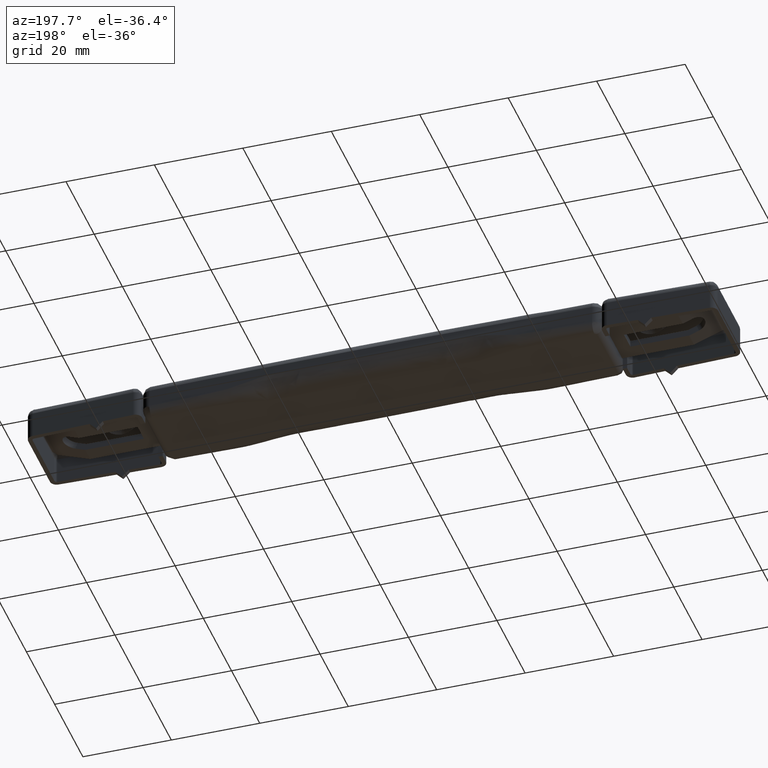
[diagram: clean part render]
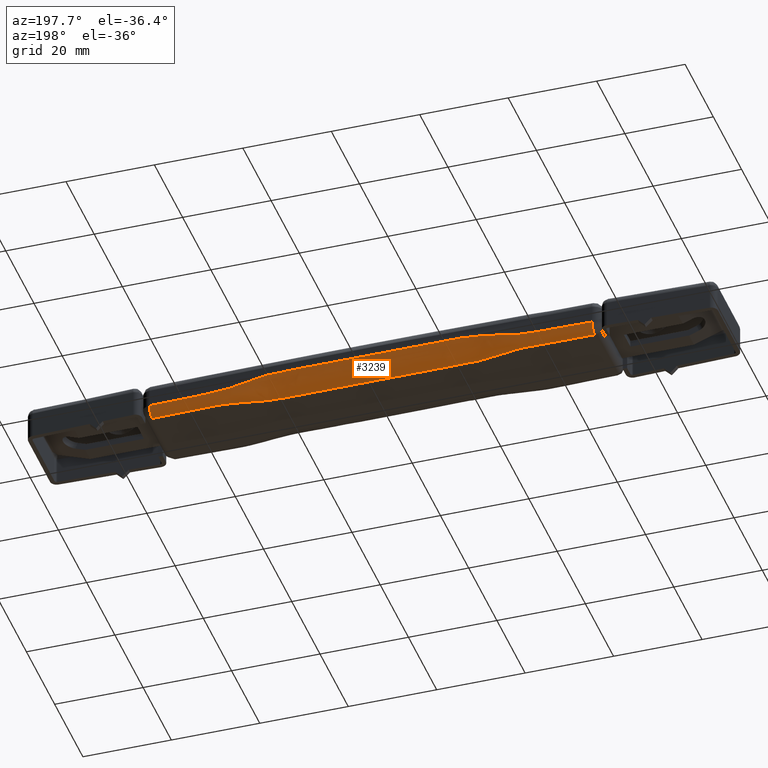
[diagram: same view with one face highlighted and labeled with its STEP entity id]
A machine part, auxiliary view. The second image highlights one B-rep face of the part: STEP entity #3239.
In plain terms, the highlighted face is a freeform B-spline surface patch.
Its self-contained STEP definition (entity closure, byte-faithful):
#2875=CARTESIAN_POINT('',(-50.030370283830990,8.867871820603176,0.585786440266086));
#2876=VERTEX_POINT('',#2875);
#2877=CARTESIAN_POINT('',(-50.043115752828498,9.453519588441759,1.999999999796830));
#2878=VERTEX_POINT('',#2877);
#2879=CARTESIAN_POINT('',(-50.030370283830983,8.867871820603174,0.585786440266087));
#2880=CARTESIAN_POINT('',(-50.043115752687534,9.453519581947637,1.171572877440153));
#2881=CARTESIAN_POINT('',(-50.043115752686099,9.453519581863509,2.0));
#2889=(BOUNDED_CURVE()B_SPLINE_CURVE(2,(#2879,#2880,#2881),.UNSPECIFIED.,.F.,.U.)B_SPLINE_CURVE_WITH_KNOTS((3,3),(0.500000001126408,1.0),.UNSPECIFIED.)CURVE()GEOMETRIC_REPRESENTATION_ITEM()RATIONAL_B_SPLINE_CURVE((0.853553390593274,0.853553390923191,1.0))REPRESENTATION_ITEM(''));
#2890=EDGE_CURVE('',#2876,#2878,#2889,.T.);
#2892=CARTESIAN_POINT('',(-49.999600000000001,7.453993043295670,0.0));
#2893=VERTEX_POINT('',#2892);
#2894=CARTESIAN_POINT('',(-49.999600000000001,7.453993043295670,0.0));
#2895=CARTESIAN_POINT('',(-50.017624814964577,8.282224058805980,2.639181E-009));
#2896=CARTESIAN_POINT('',(-50.030370283830983,8.867871820603174,0.585786440266087));
#2904=(BOUNDED_CURVE()B_SPLINE_CURVE(2,(#2894,#2895,#2896),.UNSPECIFIED.,.F.,.U.)B_SPLINE_CURVE_WITH_KNOTS((3,3),(2.252815E-009,0.500000001126408),.UNSPECIFIED.)CURVE()GEOMETRIC_REPRESENTATION_ITEM()RATIONAL_B_SPLINE_CURVE((0.999999998680331,0.853553390263356,0.853553390593274))REPRESENTATION_ITEM(''));
#2905=EDGE_CURVE('',#2893,#2876,#2904,.T.);
#2938=CARTESIAN_POINT('',(-50.998680241088060,7.398088868756100,9.694608E-015));
#2939=CARTESIAN_POINT('',(-50.998839817213444,7.405277490172491,7.647633E-015));
#2940=CARTESIAN_POINT('',(-50.999217458355162,7.422289553803827,2.803410E-015));
#2941=CARTESIAN_POINT('',(-51.043821868053030,9.431639098508079,-5.897438E-013));
#2942=CARTESIAN_POINT('',(-51.043821865091488,9.431638962659218,2.011152943470225));
#2943=CARTESIAN_POINT('',(-51.043821865066242,9.431638961503069,2.029290746417597));
#2944=CARTESIAN_POINT('',(-51.043821865056493,9.431638961055876,2.036306438272881));
#2945=CARTESIAN_POINT('',(-46.603662823637769,7.495531320730592,-6.482706E-015));
#2946=CARTESIAN_POINT('',(-46.603808647463524,7.502720238705193,-5.115930E-015));
#2947=CARTESIAN_POINT('',(-46.604153743422494,7.519733004143065,-1.881418E-015));
#2948=CARTESIAN_POINT('',(-46.644914133853980,9.529165300106945,6.077258E-013));
#2949=CARTESIAN_POINT('',(-46.644914185136429,9.529167639628133,2.011152943470219));
#2950=CARTESIAN_POINT('',(-46.644914185572929,9.529167659537107,2.029290746417581));
#2951=CARTESIAN_POINT('',(-46.644914185741712,9.529167667235216,2.036306438272861));
#2952=CARTESIAN_POINT('',(-42.208368179998168,7.580486683957759,-2.425708E-014));
#2953=CARTESIAN_POINT('',(-42.208500251018933,7.587675875934864,-1.912982E-014));
#2954=CARTESIAN_POINT('',(-42.208812800599532,7.604689289813532,-6.996020E-015));
#2955=CARTESIAN_POINT('',(-42.245729036659746,9.614198313940893,9.026753E-013));
#2956=CARTESIAN_POINT('',(-42.245729034764864,9.614198227671229,2.011152943470213));
#2957=CARTESIAN_POINT('',(-42.245729034748727,9.614198226939532,2.029290746417567));
#2958=CARTESIAN_POINT('',(-42.245729034742517,9.614198226656624,2.036306438272845));
#2959=CARTESIAN_POINT('',(-36.667118799976208,7.671679698600213,1.109831E-014));
#2960=CARTESIAN_POINT('',(-36.667233532285763,7.678869175619526,8.755741E-015));
#2961=CARTESIAN_POINT('',(-36.667505049345515,7.695883264057906,3.211988E-015));
#2962=CARTESIAN_POINT('',(-36.699574802313940,9.705471957317828,-7.667271E-013));
#2963=CARTESIAN_POINT('',(-36.699574802394913,9.705471960905726,2.011152943470226));
#2964=CARTESIAN_POINT('',(-36.699574802395560,9.705471960936926,2.029290746417597));
#2965=CARTESIAN_POINT('',(-36.699574802395830,9.705471960948996,2.036306438272881));
#2966=CARTESIAN_POINT('',(-35.521929247065863,7.722560799312190,7.234997E-015));
#2967=CARTESIAN_POINT('',(-35.522038527129368,7.729634091302878,5.706820E-015));
#2968=CARTESIAN_POINT('',(-35.522297141303930,7.746373224783215,2.090346E-015));
#2969=CARTESIAN_POINT('',(-35.552799473357780,9.723486631727617,-3.846829E-013));
#2970=CARTESIAN_POINT('',(-35.552799473356615,9.723486631896664,1.978636195944527));
#2971=CARTESIAN_POINT('',(-35.552799473356565,9.723486631897972,1.996480743046102));
#2972=CARTESIAN_POINT('',(-35.552799473356579,9.723486631898483,2.003383003707165));
#2973=CARTESIAN_POINT('',(-30.359812275553374,7.425494625278977,-2.894383E-014));
#2974=CARTESIAN_POINT('',(-30.359926164877741,7.433890984846959,-2.283100E-014));
#2975=CARTESIAN_POINT('',(-30.360195686990668,7.453761192911655,-8.364845E-015));
#2976=CARTESIAN_POINT('',(-30.392252742878046,9.800692592431519,1.595847E-012));
#2977=CARTESIAN_POINT('',(-30.392252742875698,9.800692591515498,2.348675321448480));
#2978=CARTESIAN_POINT('',(-30.392252742875691,9.800692591507797,2.369857106896252));
#2979=CARTESIAN_POINT('',(-30.392252742875705,9.800692591504824,2.378050209449934));
#2980=CARTESIAN_POINT('',(-26.332475912321232,6.011797387294662,1.327386E-014));
#2981=CARTESIAN_POINT('',(-26.332639996375182,6.025366275148871,1.047326E-014));
#2982=CARTESIAN_POINT('',(-26.333028305649655,6.057477408871375,3.845561E-015));
#2983=CARTESIAN_POINT('',(-26.378336968217674,9.850233780965148,-9.310281E-013));
#2984=CARTESIAN_POINT('',(-26.378336968249666,9.850233783905086,3.795490520849756));
#2985=CARTESIAN_POINT('',(-26.378336968249894,9.850233783932108,3.829720567576216));
#2986=CARTESIAN_POINT('',(-26.378336968249993,9.850233783942564,3.842960730164905));
#2987=CARTESIAN_POINT('',(-21.752466757707371,5.824104835099614,-4.362877E-015));
#2988=CARTESIAN_POINT('',(-21.752602634475394,5.838498754652282,-3.444369E-015));
#2989=CARTESIAN_POINT('',(-21.752924192694628,5.872562239808322,-1.263769E-015));
#2990=CARTESIAN_POINT('',(-21.790887869881701,9.894842292919686,1.590316E-013));
#2991=CARTESIAN_POINT('',(-21.790887869948858,9.894842387110140,4.025078490386779));
#2992=CARTESIAN_POINT('',(-21.790887869949319,9.894842387810693,4.061388749192279));
#2993=CARTESIAN_POINT('',(-21.790887869949522,9.894842388080974,4.075433582885403));
#2994=CARTESIAN_POINT('',(-7.441866260760922,5.960843437108304,2.999582E-014));
#2995=CARTESIAN_POINT('',(-7.441912874625825,5.975224178157760,2.366611E-014));
#2996=CARTESIAN_POINT('',(-7.442023187677241,6.009256579152190,8.687000E-015));
#2997=CARTESIAN_POINT('',(-7.455057304157164,10.028884479986679,-1.620512E-012));
#2998=CARTESIAN_POINT('',(-7.455057304173688,10.028884173873733,4.022190889000778));
#2999=CARTESIAN_POINT('',(-7.455057304174143,10.028884171145835,4.058465894664386));
#3000=CARTESIAN_POINT('',(-7.455057304174322,10.028884170090667,4.072497048300546));
#3001=CARTESIAN_POINT('',(6.869803786287791,5.960721946746296,-2.114286E-014));
#3002=CARTESIAN_POINT('',(6.869846815982804,5.975102930161231,-1.670043E-014));
#3003=CARTESIAN_POINT('',(6.869948646903526,6.009135909798484,-6.187311E-015));
#3004=CARTESIAN_POINT('',(6.881976404116701,10.028882414264704,2.444093E-012));
#3005=CARTESIAN_POINT('',(6.881976404178423,10.028882934932488,4.022310295807134));
#3006=CARTESIAN_POINT('',(6.881976404179408,10.028882939543868,4.058585924713910));
#3007=CARTESIAN_POINT('',(6.881976404179793,10.028882941327558,4.072617317245209));
#3008=CARTESIAN_POINT('',(21.180326204794731,5.832271318477611,2.983398E-015));
#3009=CARTESIAN_POINT('',(21.180458869738793,5.846651489850975,2.357743E-015));
#3010=CARTESIAN_POINT('',(21.180772824854710,5.880682547582754,8.771128E-016));
#3011=CARTESIAN_POINT('',(21.217855073098288,9.900200200450616,-6.971249E-013));
#3012=CARTESIAN_POINT('',(21.217855073133645,9.900200266482468,4.022305886940444));
#3013=CARTESIAN_POINT('',(21.217855073133972,9.900200267071206,4.058581492835181));
#3014=CARTESIAN_POINT('',(21.217855073134110,9.900200267298933,4.072612876545745));
#3015=CARTESIAN_POINT('',(21.752976719784815,5.821543382312028,4.661331E-017));
#3016=CARTESIAN_POINT('',(21.753112545083663,5.835942519197248,3.533038E-017));
#3017=CARTESIAN_POINT('',(21.753433979263214,5.870018459316873,8.629029E-018));
#3018=CARTESIAN_POINT('',(21.791288294972667,9.894838686180396,1.527078E-013));
#3019=CARTESIAN_POINT('',(21.791288294977896,9.894838686733229,4.027617997595456));
#3020=CARTESIAN_POINT('',(21.791288294977946,9.894838686739343,4.063941511341931));
#3021=CARTESIAN_POINT('',(21.791288294977967,9.894838686741712,4.077991425782277));
#3022=CARTESIAN_POINT('',(26.332894529398825,6.011792568619187,1.198933E-014));
#3023=CARTESIAN_POINT('',(26.333054620034840,6.025361505964288,9.469648E-015));
#3024=CARTESIAN_POINT('',(26.333433478779632,6.057472756808304,3.506761E-015));
#3025=CARTESIAN_POINT('',(26.378737385465556,9.850229193690479,-1.948787E-012));
#3026=CARTESIAN_POINT('',(26.378737385439038,9.850229191219500,3.795490520882327));
#3027=CARTESIAN_POINT('',(26.378737385438665,9.850229191190497,3.829720567588185));
#3028=CARTESIAN_POINT('',(26.378737385438530,9.850229191179283,3.842960730168905));
#3029=CARTESIAN_POINT('',(30.360212066844856,7.425489342066148,-2.781885E-014));
#3030=CARTESIAN_POINT('',(30.360326000711158,7.433885701252400,-2.194312E-014));
#3031=CARTESIAN_POINT('',(30.360595628233721,7.453755908413726,-8.038065E-015));
#3032=CARTESIAN_POINT('',(30.392653151458902,9.800687301490463,1.471203E-012));
#3033=CARTESIAN_POINT('',(30.392653151446215,9.800687300013442,2.348675321429861));
#3034=CARTESIAN_POINT('',(30.392653151446027,9.800687299998106,2.369857106882404));
#3035=CARTESIAN_POINT('',(30.392653151445973,9.800687299992177,2.378050209437932));
#3036=CARTESIAN_POINT('',(35.522329349916433,7.722554614042529,6.906899E-015));
#3037=CARTESIAN_POINT('',(35.522438619350019,7.729627906113896,5.447861E-015));
#3038=CARTESIAN_POINT('',(35.522697208368626,7.746367039785159,1.995009E-015));
#3039=CARTESIAN_POINT('',(35.553199868483198,9.723480441665906,-3.475284E-013));
#3040=CARTESIAN_POINT('',(35.553199868485933,9.723480441920511,1.978636195948248));
#3041=CARTESIAN_POINT('',(35.553199868485919,9.723480441923396,1.996480743048507));
#3042=CARTESIAN_POINT('',(35.553199868485940,9.723480441924517,2.003383003709060));
#3043=CARTESIAN_POINT('',(36.667518837878774,7.671673314537951,-7.549135E-015));
#3044=CARTESIAN_POINT('',(36.667633571440028,7.678862791537167,-5.954741E-015));
#3045=CARTESIAN_POINT('',(36.667905091461996,7.695876879927994,-2.181565E-015));
#3046=CARTESIAN_POINT('',(36.699975194302155,9.705465567569931,4.140404E-013));
#3047=CARTESIAN_POINT('',(36.699975194383377,9.705465571268807,2.011152943470219));
#3048=CARTESIAN_POINT('',(36.699975194384024,9.705465571300701,2.029290746417582));
#3049=CARTESIAN_POINT('',(36.699975194384301,9.705465571313038,2.036306438272862));
#3050=CARTESIAN_POINT('',(42.208768202022455,7.580479335591394,3.029036E-014));
#3051=CARTESIAN_POINT('',(42.208900274294983,7.587668527545246,2.389500E-014));
#3052=CARTESIAN_POINT('',(42.209212826837955,7.604681941368884,8.760216E-015));
#3053=CARTESIAN_POINT('',(42.246129412782878,9.614190958995158,-1.874064E-012));
#3054=CARTESIAN_POINT('',(42.246129410891463,9.614190872416010,2.011152943470231));
#3055=CARTESIAN_POINT('',(42.246129410875369,9.614190871680821,2.029290746417613));
#3056=CARTESIAN_POINT('',(42.246129410869159,9.614190871396556,2.036306438272901));
#3057=CARTESIAN_POINT('',(46.604062830847468,7.495523206068476,-8.950208E-014));
#3058=CARTESIAN_POINT('',(46.604208655924893,7.502712124017848,-7.060271E-014));
#3059=CARTESIAN_POINT('',(46.604553754846016,7.519724889396026,-2.587693E-014));
#3060=CARTESIAN_POINT('',(46.645314495150352,9.529157178308504,5.299908E-012));
#3061=CARTESIAN_POINT('',(46.645314546453243,9.529159518455368,2.011152943470193));
#3062=CARTESIAN_POINT('',(46.645314546889864,9.529159538370347,2.029290746417512));
#3063=CARTESIAN_POINT('',(46.645314547058724,9.529159546070783,2.036306438272776));
#3064=CARTESIAN_POINT('',(50.999080231358420,7.398079988915792,-6.655545E-014));
#3065=CARTESIAN_POINT('',(50.999239808735354,7.405268610304398,-5.250119E-014));
#3066=CARTESIAN_POINT('',(50.999617452838883,7.422280673869977,-1.924142E-014));
#3067=CARTESIAN_POINT('',(51.044222212367131,9.431630210807510,3.905210E-012));
#3068=CARTESIAN_POINT('',(51.044222209418471,9.431630075611439,2.011152943470200));
#3069=CARTESIAN_POINT('',(51.044222209393347,9.431630074461141,2.029290746417532));
#3070=CARTESIAN_POINT('',(51.044222209383648,9.431630074016212,2.036306438272800));
#3078=(BOUNDED_SURFACE()B_SPLINE_SURFACE(2,3,((#2938,#2945,#2952,#2959,#2966,#2973,#2980,#2987,#2994,#3001,#3008,#3015,#3022,#3029,#3036,#3043,#3050,#3057,#3064),(#2939,#2946,#2953,#2960,#2967,#2974,#2981,#2988,#2995,#3002,#3009,#3016,#3023,#3030,#3037,#3044,#3051,#3058,#3065),(#2940,#2947,#2954,#2961,#2968,#2975,#2982,#2989,#2996,#3003,#3010,#3017,#3024,#3031,#3038,#3045,#3052,#3059,#3066),(#2941,#2948,#2955,#2962,#2969,#2976,#2983,#2990,#2997,#3004,#3011,#3018,#3025,#3032,#3039,#3046,#3053,#3060,#3067),(#2942,#2949,#2956,#2963,#2970,#2977,#2984,#2991,#2998,#3005,#3012,#3019,#3026,#3033,#3040,#3047,#3054,#3061,#3068),(#2943,#2950,#2957,#2964,#2971,#2978,#2985,#2992,#2999,#3006,#3013,#3020,#3027,#3034,#3041,#3048,#3055,#3062,#3069),(#2944,#2951,#2958,#2965,#2972,#2979,#2986,#2993,#3000,#3007,#3014,#3021,#3028,#3035,#3042,#3049,#3056,#3063,#3070)),.UNSPECIFIED.,.F.,.F.,.U.)B_SPLINE_SURFACE_WITH_KNOTS((3,1,1,1,1,3),(4,2,2,2,1,2,2,2,2,4),(0.0,0.034131833860109,0.080368116020318,6.709028615105674,6.761425394664574,6.794760498138150),(0.0,13.461760639250620,16.970750380253421,29.252214473728610,31.006709344217779,73.114586236135324,74.869081106636457,87.150545200111651,90.659534941102478,104.121295580375000),.UNSPECIFIED.)GEOMETRIC_REPRESENTATION_ITEM()RATIONAL_B_SPLINE_SURFACE(((1.007102272380495,1.007102272380495,1.007102272380495,1.007102272380495,1.007102272380495,1.007102272380495,1.007102272380495,1.007102272380495,1.007102272380495,1.007102272380495,1.007102272380495,1.007102272380495,1.007102272380495,1.007102272380495,1.007102272380495,1.007102272380495,1.007102272380495,1.007102272380495,1.007102272380495),(1.005594127154974,1.005594127154974,1.005594127154974,1.005594127154974,1.005594127154974,1.005594127154974,1.005594127154974,1.005594127154974,1.005594127154974,1.005594127154974,1.005594127154974,1.005594127154974,1.005594127154974,1.005594127154974,1.005594127154974,1.005594127154974,1.005594127154974,1.005594127154974,1.005594127154974),(1.002042990964726,1.002042990964726,1.002042990964726,1.002042990964726,1.002042990964726,1.002042990964726,1.002042990964726,1.002042990964726,1.002042990964726,1.002042990964726,1.002042990964726,1.002042990964726,1.002042990964726,1.002042990964726,1.002042990964726,1.002042990964726,1.002042990964726,1.002042990964726,1.002042990964726),(0.707106781186547,0.707106781186547,0.707106781186547,0.707106781186547,0.707106781186547,0.707106781186547,0.707106781186547,0.707106781186547,0.707106781186547,0.707106781186547,0.707106781186547,0.707106781186547,0.707106781186547,0.707106781186547,0.707106781186547,0.707106781186547,0.707106781186547,0.707106781186547,0.707106781186547),(1.002315197983451,1.002315197983451,1.002315197983451,1.002315197983451,1.002315197983451,1.002315197983451,1.002315197983451,1.002315197983451,1.002315197983451,1.002315197983451,1.002315197983451,1.002315197983451,1.002315197983451,1.002315197983451,1.002315197983451,1.002315197983451,1.002315197983451,1.002315197983451,1.002315197983451),(1.006103336956595,1.006103336956595,1.006103336956595,1.006103336956595,1.006103336956595,1.006103336956595,1.006103336956595,1.006103336956595,1.006103336956595,1.006103336956595,1.006103336956595,1.006103336956595,1.006103336956595,1.006103336956595,1.006103336956595,1.006103336956595,1.006103336956595,1.006103336956595,1.006103336956595),(1.007576277946287,1.007576277946287,1.007576277946287,1.007576277946287,1.007576277946287,1.007576277946287,1.007576277946287,1.007576277946287,1.007576277946287,1.007576277946287,1.007576277946287,1.007576277946287,1.007576277946287,1.007576277946287,1.007576277946287,1.007576277946287,1.007576277946287,1.007576277946287,1.007576277946287)))REPRESENTATION_ITEM('')SURFACE());
#3079=CARTESIAN_POINT('',(50.043516100957397,9.453510875618848,2.000000000855540));
#3080=VERTEX_POINT('',#3079);
#3081=CARTESIAN_POINT('',(50.043516100957397,9.453510875618848,2.000000000855540));
#3082=CARTESIAN_POINT('',(47.752267946083180,9.501474690127379,2.000019701758371));
#3083=CARTESIAN_POINT('',(44.071118074207263,9.578533994793849,2.000051354866370));
#3084=CARTESIAN_POINT('',(39.901204369437899,9.652448716008173,1.999689689113739));
#3085=CARTESIAN_POINT('',(37.379734558095912,9.694448479876144,1.999669750499037));
#3086=CARTESIAN_POINT('',(35.848544615208219,9.718788998316189,1.997025483801839));
#3087=CARTESIAN_POINT('',(34.485153793524212,9.739542959650242,2.031072191186373));
#3088=CARTESIAN_POINT('',(33.419065508002433,9.755269606166422,2.136748789314146));
#3089=CARTESIAN_POINT('',(32.376106034920433,9.770202065052331,2.275710425631558));
#3090=CARTESIAN_POINT('',(31.252381675483520,9.785759741954990,2.462459416873122));
#3091=CARTESIAN_POINT('',(29.835034508792958,9.804665761237461,2.743392300540040));
#3092=CARTESIAN_POINT('',(28.206309764579441,9.825284791272424,3.083562957966104));
#3093=CARTESIAN_POINT('',(26.523329485207501,9.845241060662493,3.427704674590485));
#3094=CARTESIAN_POINT('',(24.932213837332618,9.863026838437795,3.714012946091363));
#3095=CARTESIAN_POINT('',(23.435383359243499,9.878779869160370,3.910348325448900));
#3096=CARTESIAN_POINT('',(22.229220425395901,9.890651656836276,3.995088548940003));
#3097=CARTESIAN_POINT('',(21.229056509130750,9.900069392693840,3.997409782197105));
#3098=CARTESIAN_POINT('',(20.186480822514010,9.909541737119145,4.000093627655925));
#3099=CARTESIAN_POINT('',(18.260701046598491,9.925929159790588,3.999939127788764));
#3100=CARTESIAN_POINT('',(15.639857715043821,9.945533355137766,4.000020055816131));
#3101=CARTESIAN_POINT('',(11.469325645767190,9.971057332735061,3.999988387698837));
#3102=CARTESIAN_POINT('',(6.256108757864308,9.992327507442315,4.000004231654998));
#3103=CARTESIAN_POINT('',(0.000200222055723,10.000835973971119,3.999997854471546));
#3104=CARTESIAN_POINT('',(-6.255708317295142,9.992328596619613,4.000004350458842));
#3105=CARTESIAN_POINT('',(-11.468925203759071,9.971059329610686,3.999988011486645));
#3106=CARTESIAN_POINT('',(-15.639457287773800,9.945536078026878,4.000020709237475));
#3107=CARTESIAN_POINT('',(-18.260036746142401,9.925934312820459,3.999937151645205));
#3108=CARTESIAN_POINT('',(-20.185552720486761,9.909549801547618,4.000096629813346));
#3109=CARTESIAN_POINT('',(-21.228128313533212,9.900077998414895,3.997402449546267));
#3110=CARTESIAN_POINT('',(-22.228131390599710,9.890662123226626,3.995107569928160));
#3111=CARTESIAN_POINT('',(-23.434559305175970,9.878788273837495,3.910399962108585));
#3112=CARTESIAN_POINT('',(-24.931001304178888,9.863040000467082,3.714131923304178));
#3113=CARTESIAN_POINT('',(-26.522544178373419,9.845250131979034,3.427809508735153));
#3114=CARTESIAN_POINT('',(-28.205350609223331,9.825296630413654,3.083640210986207));
#3115=CARTESIAN_POINT('',(-29.834464940609809,9.804673166244243,2.743537796317864));
#3116=CARTESIAN_POINT('',(-31.426998243942609,9.783430704138542,2.427554187511211));
#3117=CARTESIAN_POINT('',(-32.868580881859508,9.763308956591413,2.199603898961424));
#3118=CARTESIAN_POINT('',(-34.312679272016517,9.742166312489800,2.036301935112483));
#3119=CARTESIAN_POINT('',(-35.847988363020882,9.718804439372898,1.996606140841456));
#3120=CARTESIAN_POINT('',(-37.961291460603462,9.685148549061445,2.000686117062608));
#3121=CARTESIAN_POINT('',(-42.774396272930503,9.603811114868671,1.998963345054182));
#3122=CARTESIAN_POINT('',(-46.944073361281717,9.517596873687618,1.999558018763638));
#3123=CARTESIAN_POINT('',(-50.043115752829742,9.453519588441317,2.000000000000002));
#3124=B_SPLINE_CURVE_WITH_KNOTS('',3,(#3081,#3082,#3083,#3084,#3085,#3086,#3087,#3088,#3089,#3090,#3091,#3092,#3093,#3094,#3095,#3096,#3097,#3098,#3099,#3100,#3101,#3102,#3103,#3104,#3105,#3106,#3107,#3108,#3109,#3110,#3111,#3112,#3113,#3114,#3115,#3116,#3117,#3118,#3119,#3120,#3121,#3122,#3123),.UNSPECIFIED.,.F.,.U.,(4,1,1,1,1,1,1,1,1,1,1,1,1,1,1,1,1,1,1,1,1,1,1,1,1,1,1,1,1,1,1,1,1,1,1,1,1,1,1,1,4),(0.0,0.068461871426275,0.109991756542548,0.124589641370879,0.143795150017351,0.155744627442334,0.165311609733221,0.175784813445200,0.187177292357546,0.199337193114091,0.218950209051569,0.236887002745336,0.250656213984200,0.267238800821424,0.281968994394547,0.286733220044788,0.297115717042559,0.313116585902653,0.344264001559265,0.375411417215877,0.437706234126969,0.500001051038062,0.562295867949180,0.624590684860354,0.655738100516966,0.686885516173583,0.702878502706717,0.713260999704483,0.718033107439002,0.732750605709757,0.749345890220793,0.763103267372495,0.781051898306603,0.800659740428209,0.812824813122651,0.829552277284239,0.844255393803201,0.856200664309024,0.875410393010935,0.907400869318133,1.0),.UNSPECIFIED.);
#3125=EDGE_CURVE('',#3080,#2878,#3124,.T.);
#3126=ORIENTED_EDGE('',*,*,#3125,.F.);
#3127=CARTESIAN_POINT('',(50.030770527737332,8.867863109864356,0.585786440530513));
#3128=VERTEX_POINT('',#3127);
#3129=CARTESIAN_POINT('',(50.043516100957397,9.453510875618848,2.000000000855540));
#3130=CARTESIAN_POINT('',(50.043516098555088,9.453510868912929,1.171572877659523));
#3131=CARTESIAN_POINT('',(50.030770527737332,8.867863109864356,0.585786440530513));
#3139=(BOUNDED_CURVE()B_SPLINE_CURVE(2,(#3129,#3130,#3131),.UNSPECIFIED.,.F.,.U.)B_SPLINE_CURVE_WITH_KNOTS((3,3),(2.476964E-009,0.500000001238482),.UNSPECIFIED.)CURVE()GEOMETRIC_REPRESENTATION_ITEM()RATIONAL_B_SPLINE_CURVE((1.0,0.853553390956016,0.853553390593274))REPRESENTATION_ITEM(''));
#3140=EDGE_CURVE('',#3080,#3128,#3139,.T.);
#3141=ORIENTED_EDGE('',*,*,#3140,.T.);
#3142=CARTESIAN_POINT('',(50.0,7.453984337407190,0.0));
#3143=VERTEX_POINT('',#3142);
#3144=CARTESIAN_POINT('',(50.030770527737332,8.867863109864356,0.585786440530513));
#3145=CARTESIAN_POINT('',(50.018024956908725,8.282215350318005,2.903608E-009));
#3146=CARTESIAN_POINT('',(49.999999997750045,7.453984344471763,1.228477E-017));
#3154=(BOUNDED_CURVE()B_SPLINE_CURVE(2,(#3144,#3145,#3146),.UNSPECIFIED.,.F.,.U.)B_SPLINE_CURVE_WITH_KNOTS((3,3),(0.500000001238482,1.0),.UNSPECIFIED.)CURVE()GEOMETRIC_REPRESENTATION_ITEM()RATIONAL_B_SPLINE_CURVE((0.853553390593274,0.853553390230531,0.999999998549028))REPRESENTATION_ITEM(''));
#3155=EDGE_CURVE('',#3128,#3143,#3154,.T.);
#3156=ORIENTED_EDGE('',*,*,#3155,.T.);
#3157=CARTESIAN_POINT('',(-49.999600000000001,7.453993043295670,0.0));
#3158=CARTESIAN_POINT('',(-46.082928991246057,7.539208086076124,0.0));
#3159=CARTESIAN_POINT('',(-41.904920289410768,7.619755162427684,0.0));
#3160=CARTESIAN_POINT('',(-37.596150636058397,7.690959028298588,0.0));
#3161=CARTESIAN_POINT('',(-37.073887836700102,7.700303517321741,0.0));
#3162=CARTESIAN_POINT('',(-36.714884460127543,7.706293098118715,0.0));
#3163=CARTESIAN_POINT('',(-36.388609371978397,7.713118205272045,0.0));
#3164=CARTESIAN_POINT('',(-36.094864415919339,7.718813490124887,0.0));
#3165=CARTESIAN_POINT('',(-35.768481260680922,7.725904991689672,0.0));
#3166=CARTESIAN_POINT('',(-35.507222272392227,7.726733565481607,0.0));
#3167=CARTESIAN_POINT('',(-35.311391500971837,7.724147359225614,0.0));
#3168=CARTESIAN_POINT('',(-35.213453008181197,7.723104442542816,0.0));
#3169=CARTESIAN_POINT('',(-34.984992180252597,7.718221074084758,0.0));
#3170=CARTESIAN_POINT('',(-34.756585320890501,7.710679553695564,0.0));
#3171=CARTESIAN_POINT('',(-34.528339260255457,7.699441258498724,0.0));
#3172=CARTESIAN_POINT('',(-34.006561684482307,7.672844348710802,0.0));
#3173=CARTESIAN_POINT('',(-32.965474696383090,7.580821892244155,0.0));
#3174=CARTESIAN_POINT('',(-31.882361405524520,7.426980330677482,0.0));
#3175=CARTESIAN_POINT('',(-31.061045521274210,7.291449871780212,0.0));
#3176=CARTESIAN_POINT('',(-30.225589224968751,7.141651599526635,0.0));
#3177=CARTESIAN_POINT('',(-29.472122476308510,6.997029946890723,0.0));
#3178=CARTESIAN_POINT('',(-28.622701378124550,6.832335046995496,0.0));
#3179=CARTESIAN_POINT('',(-28.174198918358950,6.743842004210175,0.0));
#3180=CARTESIAN_POINT('',(-27.340855790086781,6.581991059518238,0.0));
#3181=CARTESIAN_POINT('',(-26.506560297864041,6.425768302655597,0.0));
#3182=CARTESIAN_POINT('',(-25.670180428295950,6.280859995471224,0.0));
#3183=CARTESIAN_POINT('',(-25.154200382278539,6.199495025730656,0.0));
#3184=CARTESIAN_POINT('',(-24.346601652047820,6.081898657462616,0.0));
#3185=CARTESIAN_POINT('',(-23.308368511579790,5.960830410483255,0.0));
#3186=CARTESIAN_POINT('',(-22.289246183072379,5.907132223337533,0.0));
#3187=CARTESIAN_POINT('',(-21.807818064606440,5.899904791173635,0.0));
#3188=CARTESIAN_POINT('',(-21.669133499526819,5.901023275988207,0.0));
#3189=CARTESIAN_POINT('',(-21.491600013791370,5.901136922805643,0.0));
#3190=CARTESIAN_POINT('',(-21.124333036237761,5.903951284595477,0.0));
#3191=CARTESIAN_POINT('',(-20.528531179184821,5.907147243308614,0.0));
#3192=CARTESIAN_POINT('',(-19.734811119997779,5.913922018008933,0.0));
#3193=CARTESIAN_POINT('',(-18.624793126276192,5.922465959983224,0.0));
#3194=CARTESIAN_POINT('',(-6.301015639243659,6.019578147753740,0.0));
#3195=CARTESIAN_POINT('',(6.774450400033462,6.019568517216327,0.0));
#3196=CARTESIAN_POINT('',(19.441022679260922,5.915991483347877,0.0));
#3197=CARTESIAN_POINT('',(20.818355483301030,5.905322147516966,0.0));
#3198=CARTESIAN_POINT('',(21.234608479324191,5.903284216314010,0.0));
#3199=CARTESIAN_POINT('',(21.548823581673560,5.900844039312431,0.0));
#3200=CARTESIAN_POINT('',(21.705931461410898,5.900983389515034,0.0));
#3201=CARTESIAN_POINT('',(21.860908990597689,5.899721434754014,0.0));
#3202=CARTESIAN_POINT('',(22.003601789730102,5.903740911796339,0.0));
#3203=CARTESIAN_POINT('',(22.166689980527590,5.907339446701265,0.0));
#3204=CARTESIAN_POINT('',(22.656120969256840,5.924771271434456,0.0));
#3205=CARTESIAN_POINT('',(23.568208438395519,5.989726282997066,0.0));
#3206=CARTESIAN_POINT('',(24.492032011534000,6.102596971851164,0.0));
#3207=CARTESIAN_POINT('',(25.202648926156812,6.206668482423345,0.0));
#3208=CARTESIAN_POINT('',(25.782928698988549,6.299415378628106,0.0));
#3209=CARTESIAN_POINT('',(26.699342040625730,6.460487391287681,0.0));
#3210=CARTESIAN_POINT('',(27.789897402998001,6.667638986093473,0.0));
#3211=CARTESIAN_POINT('',(28.782751314751479,6.863986031190132,0.0));
#3212=CARTESIAN_POINT('',(29.696477478700871,7.039828930505328,0.0));
#3213=CARTESIAN_POINT('',(30.450365143426950,7.182005480781927,0.0));
#3214=CARTESIAN_POINT('',(31.060972507015052,7.291309763138121,0.0));
#3215=CARTESIAN_POINT('',(31.882279570281469,7.426926464026802,0.0));
#3216=CARTESIAN_POINT('',(32.900766000446573,7.571579869977136,0.0));
#3217=CARTESIAN_POINT('',(33.941339971457040,7.667082218328652,0.0));
#3218=CARTESIAN_POINT('',(34.479152405346532,7.697481093368283,0.0));
#3219=CARTESIAN_POINT('',(34.772742914019837,7.707634959334868,0.0));
#3220=CARTESIAN_POINT('',(35.148105588652470,7.714573071183522,0.0));
#3221=CARTESIAN_POINT('',(36.045902578390908,7.717817864924758,0.0));
#3222=CARTESIAN_POINT('',(37.074220743399401,7.701819106746175,0.0));
#3223=CARTESIAN_POINT('',(38.200324134653407,7.678804217542647,0.0));
#3224=CARTESIAN_POINT('',(39.277502916643058,7.657377303141685,0.0));
#3225=CARTESIAN_POINT('',(40.599497444447927,7.633262735048892,0.0));
#3226=CARTESIAN_POINT('',(42.411063777158581,7.601653927058509,0.0));
#3227=CARTESIAN_POINT('',(44.075860088314599,7.577755609415204,0.0));
#3228=CARTESIAN_POINT('',(45.218247680821882,7.554781494443112,0.0));
#3229=CARTESIAN_POINT('',(47.062452688337103,7.517484169875009,0.0));
#3230=CARTESIAN_POINT('',(48.531232571826841,7.486000342904489,0.0));
#3231=CARTESIAN_POINT('',(50.0,7.453984337407190,0.0));
#3232=B_SPLINE_CURVE_WITH_KNOTS('',3,(#3157,#3158,#3159,#3160,#3161,#3162,#3163,#3164,#3165,#3166,#3167,#3168,#3169,#3170,#3171,#3172,#3173,#3174,#3175,#3176,#3177,#3178,#3179,#3180,#3181,#3182,#3183,#3184,#3185,#3186,#3187,#3188,#3189,#3190,#3191,#3192,#3193,#3194,#3195,#3196,#3197,#3198,#3199,#3200,#3201,#3202,#3203,#3204,#3205,#3206,#3207,#3208,#3209,#3210,#3211,#3212,#3213,#3214,#3215,#3216,#3217,#3218,#3219,#3220,#3221,#3222,#3223,#3224,#3225,#3226,#3227,#3228,#3229,#3230,#3231),.UNSPECIFIED.,.F.,.U.,(4,1,1,1,1,1,1,1,1,1,1,1,1,1,1,1,1,1,1,2,1,1,1,1,1,1,1,1,1,1,1,1,1,1,1,1,1,1,1,1,1,1,1,1,1,1,1,1,1,1,1,1,1,1,1,1,1,1,1,1,1,1,1,1,1,1,1,1,1,2,4),(0.000120689475068,11.752915614870499,12.536435497510720,12.928195235704420,13.319954973898090,13.613593843476080,13.907232713053990,14.201358195321260,14.592967761169360,14.690937065795890,14.788906370422341,14.886794296495180,15.376482434235269,15.474432670961530,15.572382907687750,16.943713564185689,18.608683742733088,18.853291253882261,19.441042693035779,21.154936936345710,22.036763703013492,22.526377742026611,23.701685787795501,24.583100227516201,25.072827663290159,25.268675008499290,27.031608916278859,28.206826020492912,28.329003423874990,28.475942462531989,28.622881501189031,28.861604362854880,29.577772947852580,30.410311235311109,31.242849522769600,32.907926097686641,67.382791068653859,70.468142765070354,70.908907293129815,71.514913371294071,71.716915397348771,71.851577416764741,71.986239436180625,72.181820289375537,72.279767965704806,72.475643957725197,73.650920272305171,75.022065895861701,75.266861945779681,75.805556513982566,76.784927782978315,78.058168115888478,79.135660858885160,79.821173030336851,80.849636503959175,81.437189517374264,81.682052006252079,83.346988871948213,84.522305929415339,84.816022748269972,84.962856593748882,85.403582147359089,85.942252789383076,87.656190134078955,88.488753573317780,89.321317012556548,90.888356200427140,92.455395396645827,94.756844274284205,95.883241721495438,100.290591420283800),.UNSPECIFIED.);
#3233=EDGE_CURVE('',#2893,#3143,#3232,.T.);
#3234=ORIENTED_EDGE('',*,*,#3233,.F.);
#3235=ORIENTED_EDGE('',*,*,#2905,.T.);
#3236=ORIENTED_EDGE('',*,*,#2890,.T.);
#3237=EDGE_LOOP('',(#3126,#3141,#3156,#3234,#3235,#3236));
#3238=FACE_OUTER_BOUND('',#3237,.T.);
#3239=ADVANCED_FACE('',(#3238),#3078,.T.);